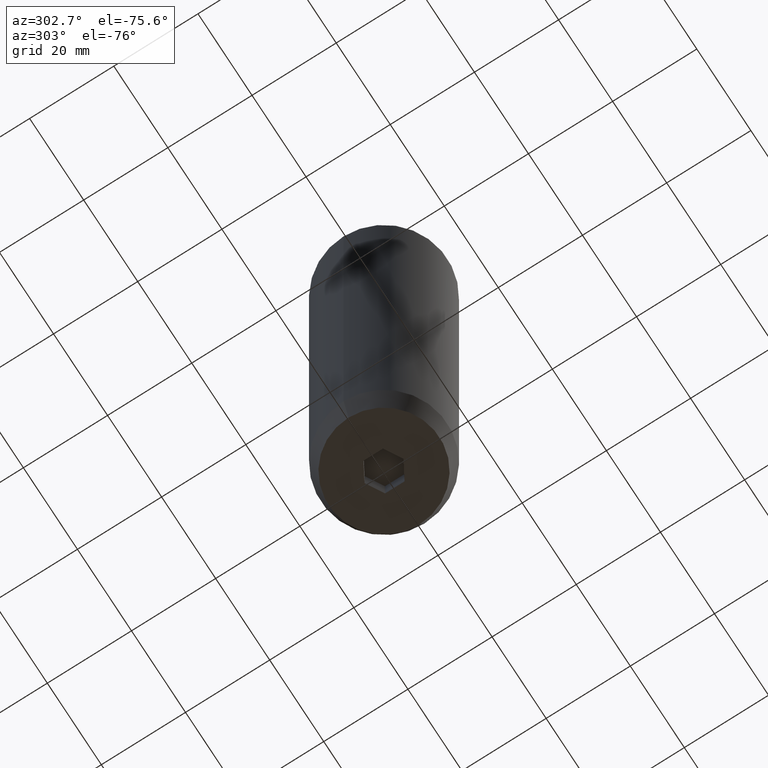
[diagram: clean part render]
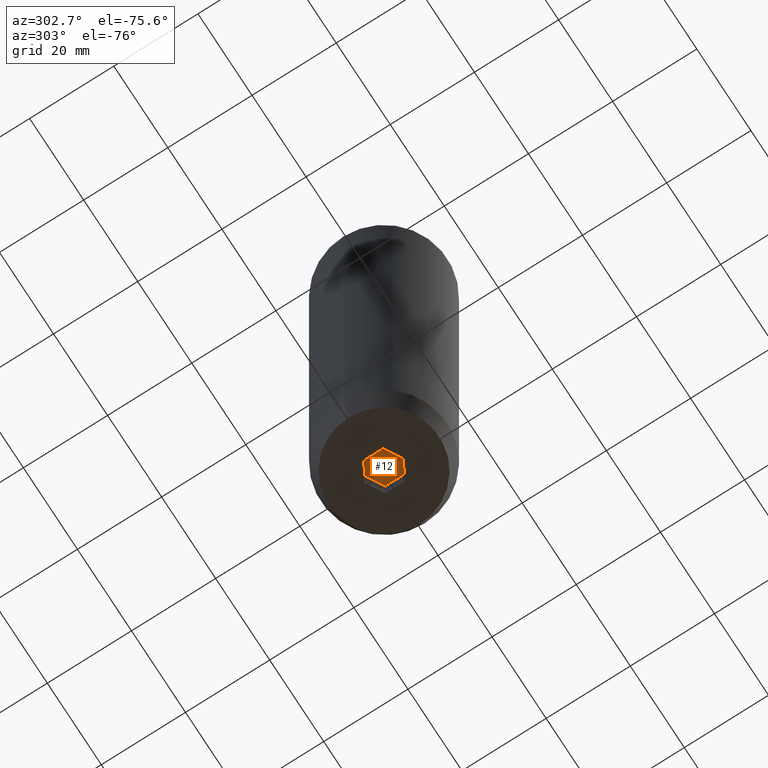
[diagram: same view with one face highlighted and labeled with its STEP entity id]
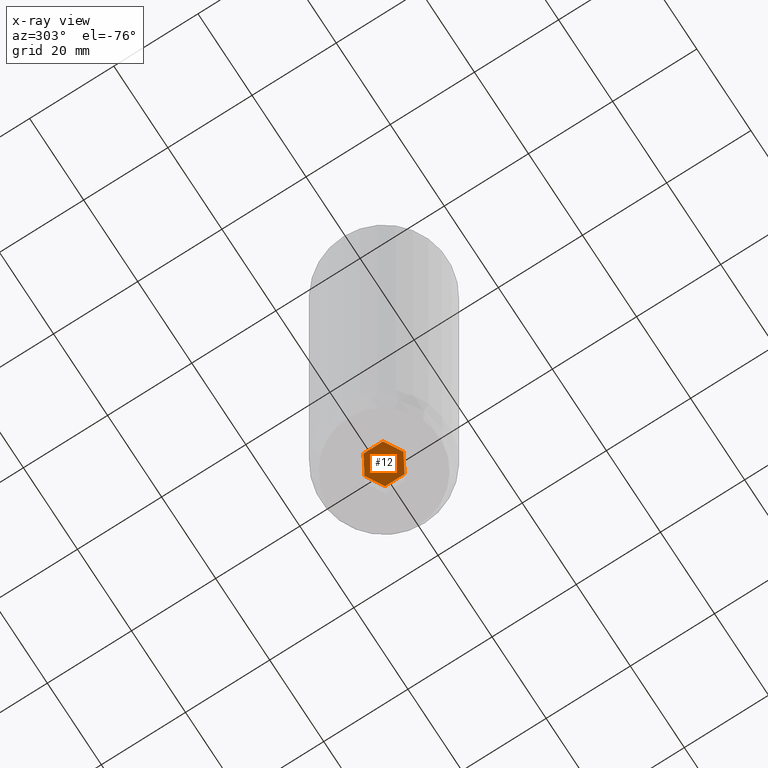
[diagram: x-ray of the same camera — body ghosted, the highlighted face saturated]
A machine part, auxiliary view. The second image highlights one B-rep face of the part: STEP entity #12.
The next image is the same camera in x-ray: the body ghosted, the highlighted face saturated — about 0% of this face is hidden behind the body in this view.
In plain terms, the highlighted planar face has unit normal (0, 0, -1).
Its self-contained STEP definition (entity closure, byte-faithful):
#4 = CARTESIAN_POINT ( 'NONE',  ( 4.000000000000000000, 2.309401076758504257, -134.2000000000000171 ) ) ;
#10 = CARTESIAN_POINT ( 'NONE',  ( -4.000000000000001776, -2.309401076758503368, -134.2000000000000171 ) ) ;
#12 = ADVANCED_FACE ( 'NONE', ( #50 ), #356, .T. ) ;
#15 = AXIS2_PLACEMENT_3D ( 'NONE', #556, #250, #359 ) ;
#34 = LINE ( 'NONE', #292, #341 ) ;
#37 = VECTOR ( 'NONE', #469, 1000.000000000000000 ) ;
#50 = FACE_OUTER_BOUND ( 'NONE', #419, .T. ) ;
#56 = CARTESIAN_POINT ( 'NONE',  ( -4.000000000000000000, 2.309401076758504257, -134.2000000000000171 ) ) ;
#70 = LINE ( 'NONE', #115, #89 ) ;
#89 = VECTOR ( 'NONE', #562, 1000.000000000000227 ) ;
#104 = VERTEX_POINT ( 'NONE', #56 ) ;
#115 = CARTESIAN_POINT ( 'NONE',  ( 1.999999999999999556, -3.464101615137754386, -134.2000000000000171 ) ) ;
#119 = EDGE_CURVE ( 'NONE', #577, #104, #428, .T. ) ;
#124 = CARTESIAN_POINT ( 'NONE',  ( -4.000000000000000888, 1.502314598737159623E-15, -134.2000000000000171 ) ) ;
#133 = LINE ( 'NONE', #573, #584 ) ;
#135 = ORIENTED_EDGE ( 'NONE', *, *, #398, .T. ) ;
#165 = EDGE_CURVE ( 'NONE', #421, #384, #70, .T. ) ;
#166 = ORIENTED_EDGE ( 'NONE', *, *, #219, .T. ) ;
#173 = LINE ( 'NONE', #414, #410 ) ;
#219 = EDGE_CURVE ( 'NONE', #384, #577, #173, .T. ) ;
#231 = DIRECTION ( 'NONE',  ( 0.8660254037844387076, 0.4999999999999999445, 0.000000000000000000 ) ) ;
#241 = ORIENTED_EDGE ( 'NONE', *, *, #333, .T. ) ;
#250 = DIRECTION ( 'NONE',  ( 0.000000000000000000, 0.000000000000000000, -1.000000000000000000 ) ) ;
#255 = ORIENTED_EDGE ( 'NONE', *, *, #119, .T. ) ;
#273 = DIRECTION ( 'NONE',  ( -0.8660254037844387076, 0.4999999999999997224, 0.000000000000000000 ) ) ;
#276 = VECTOR ( 'NONE', #231, 999.9999999999998863 ) ;
#292 = CARTESIAN_POINT ( 'NONE',  ( 2.000000000000000000, 3.464101615137755275, -134.2000000000000171 ) ) ;
#304 = EDGE_CURVE ( 'NONE', #539, #421, #133, .T. ) ;
#333 = EDGE_CURVE ( 'NONE', #104, #521, #526, .T. ) ;
#341 = VECTOR ( 'NONE', #587, 999.9999999999998863 ) ;
#356 = PLANE ( 'NONE',  #15 ) ;
#359 = DIRECTION ( 'NONE',  ( -1.000000000000000000, 0.000000000000000000, -0.000000000000000000 ) ) ;
#365 = ORIENTED_EDGE ( 'NONE', *, *, #165, .T. ) ;
#384 = VERTEX_POINT ( 'NONE', #480 ) ;
#398 = EDGE_CURVE ( 'NONE', #521, #539, #34, .T. ) ;
#410 = VECTOR ( 'NONE', #273, 1000.000000000000114 ) ;
#414 = CARTESIAN_POINT ( 'NONE',  ( -1.999999999999999112, -3.464101615137755275, -134.2000000000000171 ) ) ;
#419 = EDGE_LOOP ( 'NONE', ( #241, #135, #426, #365, #166, #255 ) ) ;
#421 = VERTEX_POINT ( 'NONE', #576 ) ;
#426 = ORIENTED_EDGE ( 'NONE', *, *, #304, .T. ) ;
#428 = LINE ( 'NONE', #124, #37 ) ;
#441 = CARTESIAN_POINT ( 'NONE',  ( -2.000000000000000000, 3.464101615137755275, -134.2000000000000171 ) ) ;
#469 = DIRECTION ( 'NONE',  ( 3.755786496842898071E-16, 1.000000000000000000, 0.000000000000000000 ) ) ;
#480 = CARTESIAN_POINT ( 'NONE',  ( 8.673617379884035472E-16, -4.618802153517004960, -134.2000000000000171 ) ) ;
#521 = VERTEX_POINT ( 'NONE', #597 ) ;
#526 = LINE ( 'NONE', #441, #276 ) ;
#539 = VERTEX_POINT ( 'NONE', #4 ) ;
#556 = CARTESIAN_POINT ( 'NONE',  ( 0.000000000000000000, 0.000000000000000000, -134.2000000000000171 ) ) ;
#562 = DIRECTION ( 'NONE',  ( -0.8660254037844385966, -0.4999999999999998890, 0.000000000000000000 ) ) ;
#573 = CARTESIAN_POINT ( 'NONE',  ( 4.000000000000000000, 0.000000000000000000, -134.2000000000000171 ) ) ;
#576 = CARTESIAN_POINT ( 'NONE',  ( 4.000000000000000000, -2.309401076758503368, -134.2000000000000171 ) ) ;
#577 = VERTEX_POINT ( 'NONE', #10 ) ;
#584 = VECTOR ( 'NONE', #639, 1000.000000000000000 ) ;
#587 = DIRECTION ( 'NONE',  ( 0.8660254037844387076, -0.4999999999999999445, 0.000000000000000000 ) ) ;
#597 = CARTESIAN_POINT ( 'NONE',  ( 2.168404344971008868E-16, 4.618802153517005848, -134.2000000000000171 ) ) ;
#639 = DIRECTION ( 'NONE',  ( 0.000000000000000000, -1.000000000000000000, 0.000000000000000000 ) ) ;